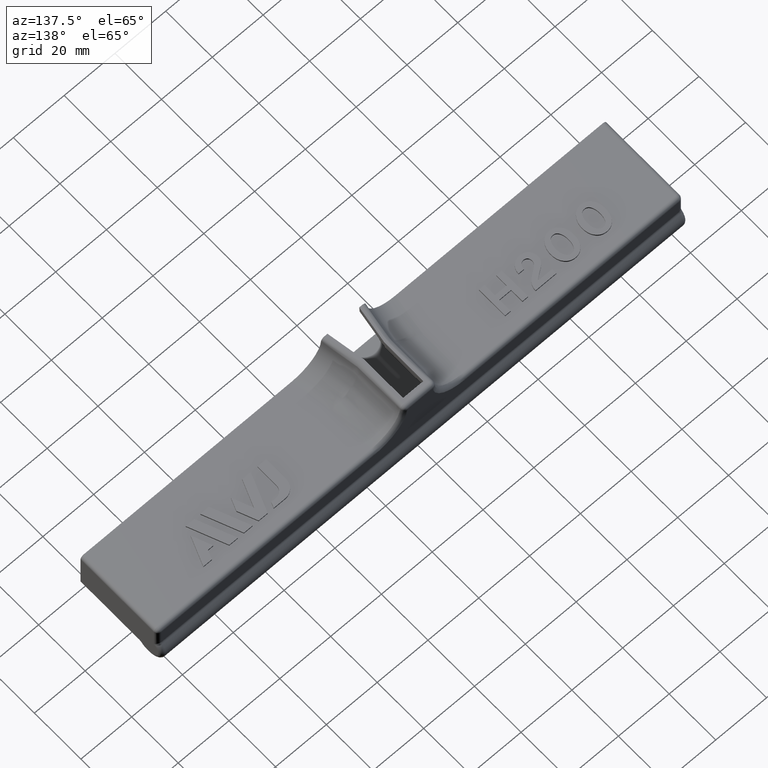
[diagram: clean part render]
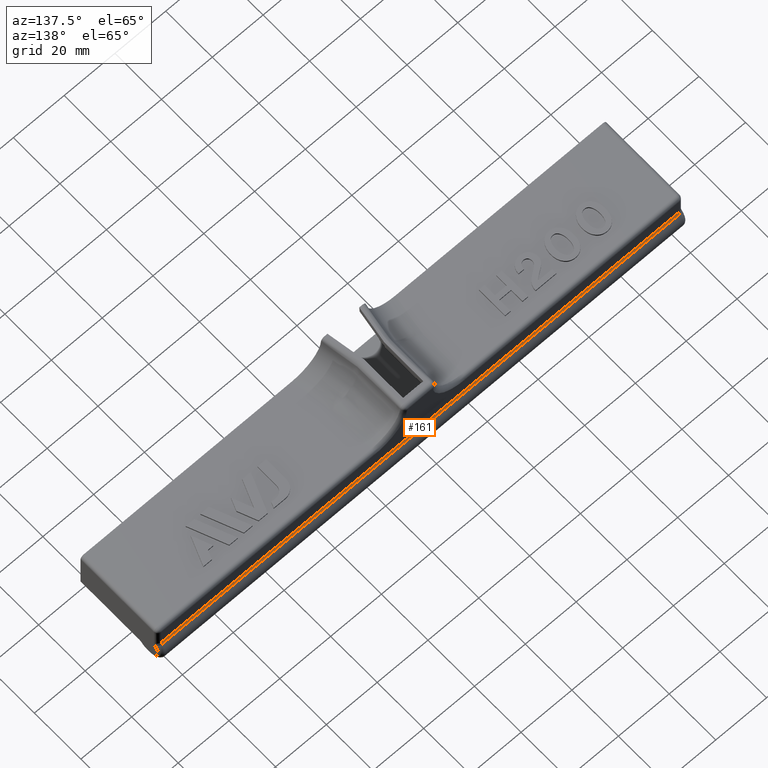
[diagram: same view with one face highlighted and labeled with its STEP entity id]
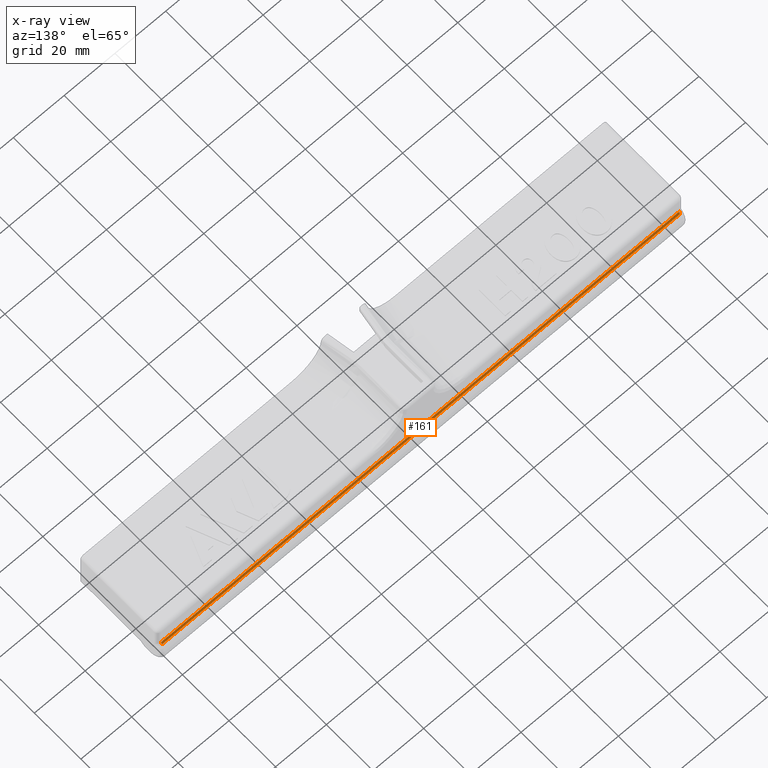
[diagram: x-ray of the same camera — body ghosted, the highlighted face saturated]
A machine part, auxiliary view. The second image highlights one B-rep face of the part: STEP entity #161.
The next image is the same camera in x-ray: the body ghosted, the highlighted face saturated — about 0% of this face is hidden behind the body in this view.
In plain terms, the highlighted cylindrical surface (edge-blend (fillet) strip) has radius 1.5 mm, axis along (1, 0, 0).
Its self-contained STEP definition (entity closure, byte-faithful):
#161=ADVANCED_FACE('',(#339),#340,.F.);
#339=FACE_OUTER_BOUND('',#1166,.T.);
#340=CYLINDRICAL_SURFACE('',#1167,1.5);
#1166=EDGE_LOOP('',(#2186,#2187,#2188,#2189));
#1167=AXIS2_PLACEMENT_3D('',#2190,#2191,#2192);
#2186=ORIENTED_EDGE('',*,*,#3054,.T.);
#2187=ORIENTED_EDGE('',*,*,#3055,.F.);
#2188=ORIENTED_EDGE('',*,*,#3056,.T.);
#2189=ORIENTED_EDGE('',*,*,#3025,.F.);
#2190=CARTESIAN_POINT('',(105.0,34.5,0.0934584445085672));
#2191=DIRECTION('',(1.0,2.09750591841134E-31,1.80288795780629E-16));
#2192=DIRECTION('',(-1.80288795780629E-16,1.16341445918998E-15,1.0));
#3025=EDGE_CURVE('',#3421,#3423,#3424,.T.);
#3054=EDGE_CURVE('',#3421,#3232,#3460,.T.);
#3055=EDGE_CURVE('',#3241,#3232,#3461,.F.);
#3056=EDGE_CURVE('',#3241,#3423,#3462,.T.);
#3232=VERTEX_POINT('',#3783);
#3241=VERTEX_POINT('',#3803);
#3421=VERTEX_POINT('',#4641);
#3423=VERTEX_POINT('',#4644);
#3424=LINE('',#4645,#4646);
#3460=CIRCLE('',#4813,1.5);
#3461=LINE('',#4814,#4815);
#3462=CIRCLE('',#4816,1.5);
#3783=CARTESIAN_POINT('',(102.0,33.3878679656441,-0.913101210037173));
#3803=CARTESIAN_POINT('',(-102.0,33.3878679656441,-0.913101210037212));
#4641=CARTESIAN_POINT('',(102.0,33.0,0.0934584445085685));
#4644=CARTESIAN_POINT('',(-102.0,33.0,0.0934584445085297));
#4645=CARTESIAN_POINT('',(18.0,33.0,0.0934584445085583));
#4646=VECTOR('',#5270,1000.0);
#4813=AXIS2_PLACEMENT_3D('',#5301,#5302,#5303);
#4814=CARTESIAN_POINT('',(105.0,33.3878679656441,-0.913101210037187));
#4815=VECTOR('',#5304,1000.0);
#4816=AXIS2_PLACEMENT_3D('',#5305,#5306,#5307);
#5270=DIRECTION('',(-1.0,-2.09750591841134E-31,-1.80288795780629E-16));
#5301=CARTESIAN_POINT('',(102.0,34.5,0.0934584445085668));
#5302=DIRECTION('',(1.0,1.42477179352876E-31,1.22464679914735E-16));
#5303=DIRECTION('',(-3.21130898074437E-46,1.0,-1.16341445918998E-15));
#5304=DIRECTION('',(-1.0,-2.09750591841134E-31,-1.80288795780629E-16));
#5305=CARTESIAN_POINT('',(-102.0,34.5,0.0934584445085418));
#5306=DIRECTION('',(-1.0,-3.7007434154172E-14,1.31917759177702E-14));
#5307=DIRECTION('',(3.7007434154172E-14,-1.0,1.16341445918999E-15));